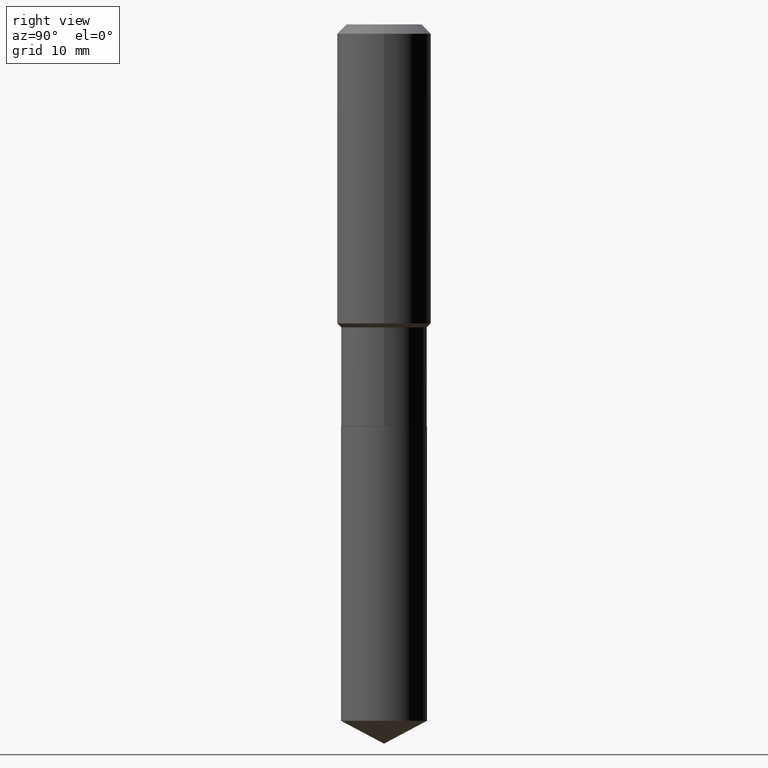
[diagram: clean part render]
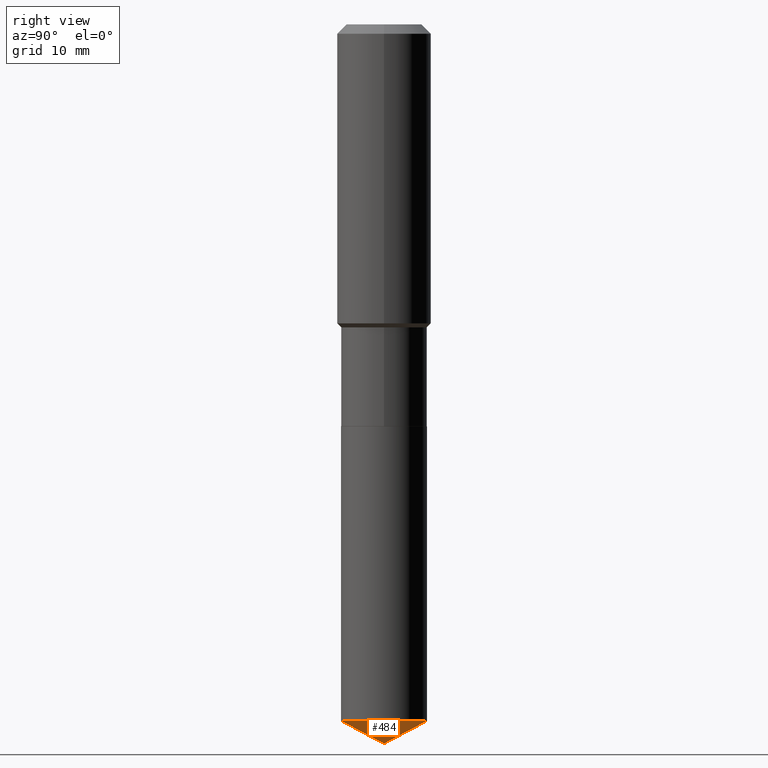
[diagram: same view with one face highlighted and labeled with its STEP entity id]
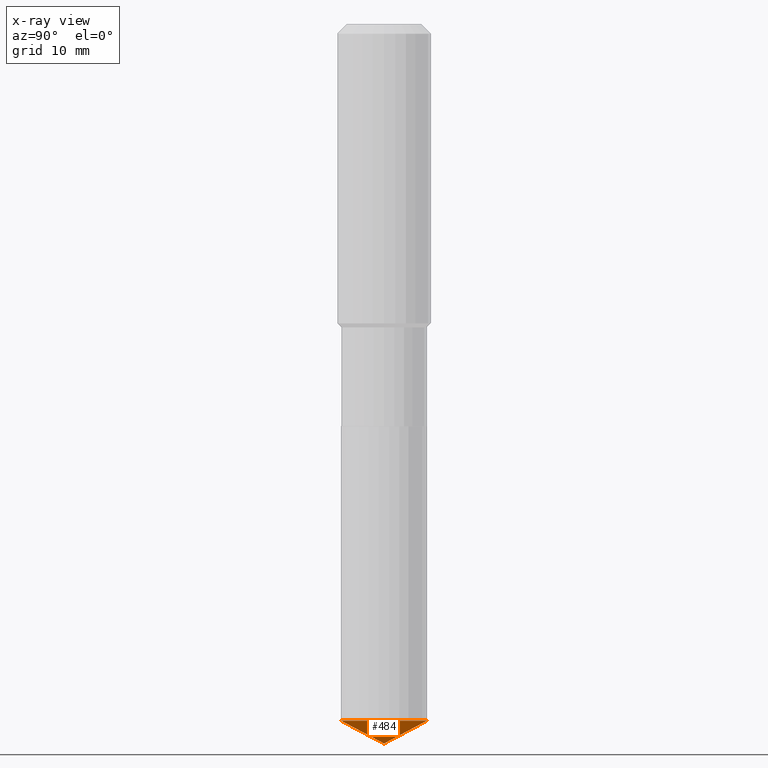
[diagram: x-ray of the same camera — body ghosted, the highlighted face saturated]
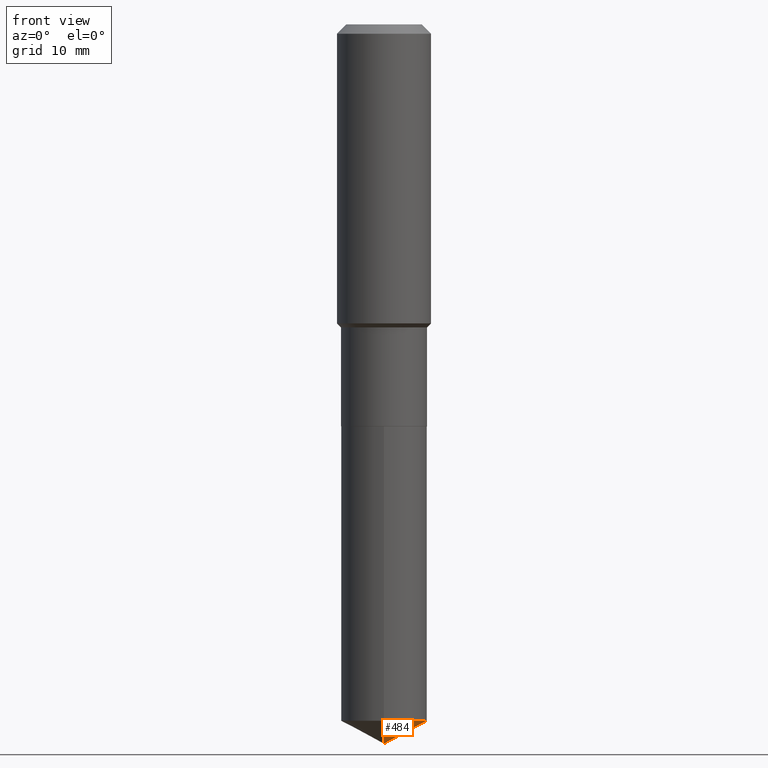
[diagram: same view with one face highlighted and labeled with its STEP entity id]
A machine part, right view. The second image highlights one B-rep face of the part: STEP entity #484.
The next image is the same camera in x-ray: the body ghosted, the highlighted face saturated — about 0% of this face is hidden behind the body in this view.
A second angle (front view) of the same face is appended — the face is thin or edge-on in the first view.
In plain terms, the highlighted conical surface has half-angle 62 deg.
Its self-contained STEP definition (entity closure, byte-faithful):
#37 = CONICAL_SURFACE ( 'NONE', #317, 74.04434902938382379, 1.082104136236488046 ) ;
#45 = ORIENTED_EDGE ( 'NONE', *, *, #136, .T. ) ;
#81 = VECTOR ( 'NONE', #258, 39.37007874015748143 ) ;
#88 = VECTOR ( 'NONE', #297, 39.37007874015748854 ) ;
#119 = CIRCLE ( 'NONE', #213, 0.2519500000000000073 ) ;
#136 = EDGE_CURVE ( 'NONE', #408, #141, #481, .T. ) ;
#141 = VERTEX_POINT ( 'NONE', #301 ) ;
#143 = CARTESIAN_POINT ( 'NONE',  ( 1.030165121072787101E-28, -1.470840143236994038E-14, -4.212600000000000122 ) ) ;
#145 = CARTESIAN_POINT ( 'NONE',  ( 1.030290267436248259E-28, -1.470662484380094311E-14, -4.212600000000000122 ) ) ;
#147 = CARTESIAN_POINT ( 'NONE',  ( -8.598640087377329559E-28, 1.227375274787306404E-13, 35.15747874015747954 ) ) ;
#151 = DIRECTION ( 'NONE',  ( -2.445732278377951745E-29, 3.491104031667128479E-15, 1.000000000000000000 ) ) ;
#160 = DIRECTION ( 'NONE',  ( -6.982962677686265922E-15, -1.000000000000000000, 4.337127197720600657E-15 ) ) ;
#168 = EDGE_CURVE ( 'NONE', #408, #327, #178, .T. ) ;
#178 = LINE ( 'NONE', #143, #88 ) ;
#193 = DIRECTION ( 'NONE',  ( -6.982962677686264344E-15, -1.000000000000000000, 3.541896320645547064E-15 ) ) ;
#206 = CARTESIAN_POINT ( 'NONE',  ( 1.030289179589496098E-28, -1.470662484380094311E-14, -4.212600000000000122 ) ) ;
#213 = AXIS2_PLACEMENT_3D ( 'NONE', #414, #151, #160 ) ;
#232 = CARTESIAN_POINT ( 'NONE',  ( -1.759357446642955206E-15, -0.2519500000000142181, -4.078635808692890663 ) ) ;
#258 = DIRECTION ( 'NONE',  ( 6.273719981627770021E-15, 0.8829475928589302081, 0.4694715627858844220 ) ) ;
#289 = EDGE_CURVE ( 'NONE', #327, #141, #119, .T. ) ;
#297 = DIRECTION ( 'NONE',  ( -6.165590087286839185E-15, -0.8829475928589269884, 0.4694715627858906393 ) ) ;
#301 = CARTESIAN_POINT ( 'NONE',  ( 1.790212422747671867E-15, 0.2519499999999857409, -4.078635808692893328 ) ) ;
#317 = AXIS2_PLACEMENT_3D ( 'NONE', #147, #358, #193 ) ;
#327 = VERTEX_POINT ( 'NONE', #232 ) ;
#342 = ORIENTED_EDGE ( 'NONE', *, *, #289, .F. ) ;
#358 = DIRECTION ( 'NONE',  ( -2.445732278377951745E-29, 3.491104031667128479E-15, 1.000000000000000000 ) ) ;
#379 = FACE_OUTER_BOUND ( 'NONE', #438, .T. ) ;
#396 = ORIENTED_EDGE ( 'NONE', *, *, #168, .F. ) ;
#408 = VERTEX_POINT ( 'NONE', #206 ) ;
#414 = CARTESIAN_POINT ( 'NONE',  ( 9.974630956484820377E-29, -1.423983020971417209E-14, -4.078635808692891551 ) ) ;
#438 = EDGE_LOOP ( 'NONE', ( #396, #45, #342 ) ) ;
#481 = LINE ( 'NONE', #145, #81 ) ;
#484 = ADVANCED_FACE ( 'NONE', ( #379 ), #37, .T. ) ;